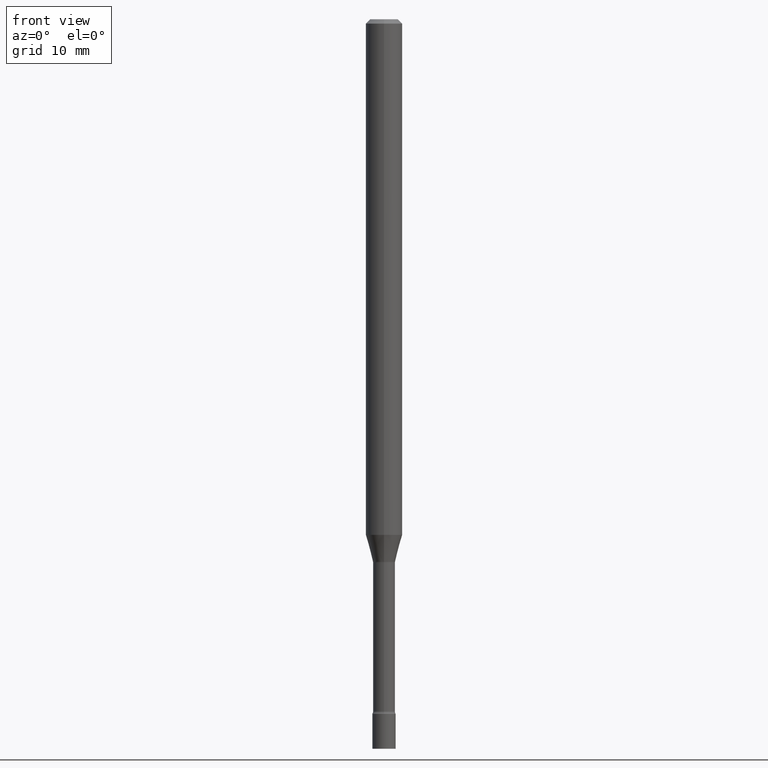
[diagram: clean part render]
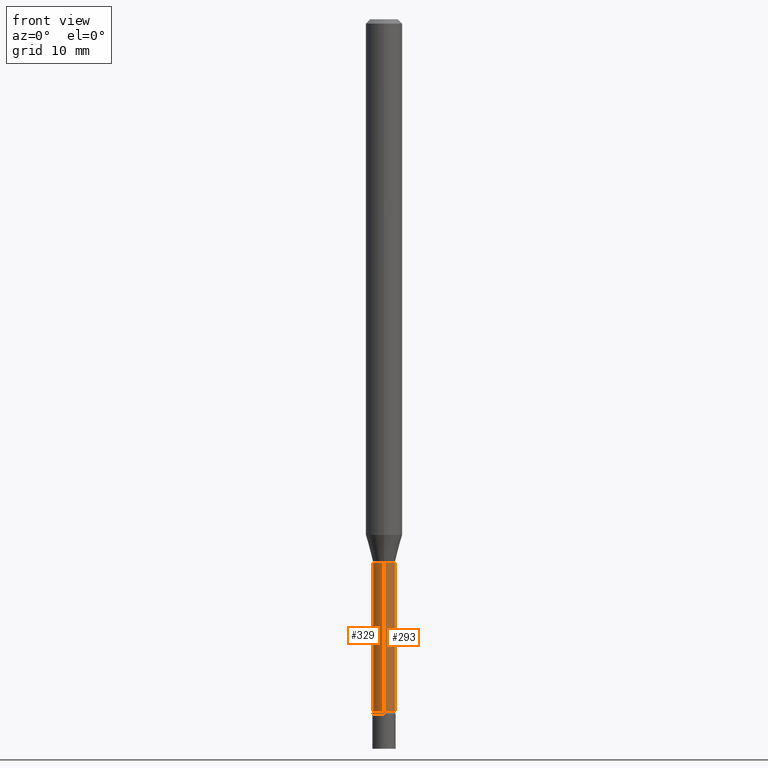
[diagram: same view with one multi-face feature highlighted, each face labeled with its STEP entity id]
A machine part, front view. The highlighted faces form ONE feature: a constant-radius fillet chain: 2 tangent blend faces with common blend radius 0.955 mm. The faces share edges in the B-rep.
Their STEP definitions:
[1] entity #329 (Cylinder):
#5 = CIRCLE ( 'NONE', #405, 0.03759999999999999454 ) ;
#8 = ORIENTED_EDGE ( 'NONE', *, *, #13, .T. ) ;
#13 = EDGE_CURVE ( 'NONE', #61, #472, #96, .T. ) ;
#41 = CARTESIAN_POINT ( 'NONE',  ( 5.800357778224581997E-29, -8.281244415803181526E-15, -2.371861204020250025 ) ) ;
#47 = AXIS2_PLACEMENT_3D ( 'NONE', #404, #335, #203 ) ;
#61 = VERTEX_POINT ( 'NONE', #353 ) ;
#64 = ORIENTED_EDGE ( 'NONE', *, *, #508, .F. ) ;
#95 = CARTESIAN_POINT ( 'NONE',  ( -2.625593966809461641E-16, -0.03760000000000835590, -2.371861204020250025 ) ) ;
#96 = CIRCLE ( 'NONE', #180, 0.03760000000000007780 ) ;
#107 = VECTOR ( 'NONE', #440, 39.37007874015748143 ) ;
#134 = CARTESIAN_POINT ( 'NONE',  ( 2.671640686457979269E-16, 0.03760000000000003617, -1.312786724224954295E-16 ) ) ;
#153 = EDGE_CURVE ( 'NONE', #297, #380, #5, .T. ) ;
#167 = CYLINDRICAL_SURFACE ( 'NONE', #47, 0.03760000000000003617 ) ;
#180 = AXIS2_PLACEMENT_3D ( 'NONE', #41, #324, #431 ) ;
#203 = DIRECTION ( 'NONE',  ( -6.982962677686267499E-15, -1.000000000000000000, 3.491454053789768672E-15 ) ) ;
#220 = CARTESIAN_POINT ( 'NONE',  ( 4.553436736946422852E-29, -6.500999419744866443E-15, -1.861974787463811065 ) ) ;
#247 = CARTESIAN_POINT ( 'NONE',  ( -2.625593966809580464E-16, -0.03760000000000649628, -1.861974787463811065 ) ) ;
#253 = LINE ( 'NONE', #134, #367 ) ;
#297 = VERTEX_POINT ( 'NONE', #517 ) ;
#324 = DIRECTION ( 'NONE',  ( -2.445487859236075809E-29, 3.491454053789768278E-15, 1.000000000000000000 ) ) ;
#328 = CARTESIAN_POINT ( 'NONE',  ( -2.625593966810038989E-16, -0.03760000000000003617, 1.312786724224954295E-16 ) ) ;
#329 = ADVANCED_FACE ( 'NONE', ( #407 ), #167, .T. ) ;
#332 = LINE ( 'NONE', #328, #107 ) ;
#335 = DIRECTION ( 'NONE',  ( -2.445487859236075809E-29, 3.491454053789768278E-15, 1.000000000000000000 ) ) ;
#353 = CARTESIAN_POINT ( 'NONE',  ( 2.756905814749771574E-16, 0.03759999999999179970, -2.371861204020250025 ) ) ;
#359 = EDGE_CURVE ( 'NONE', #472, #380, #332, .T. ) ;
#367 = VECTOR ( 'NONE', #413, 39.37007874015748143 ) ;
#380 = VERTEX_POINT ( 'NONE', #247 ) ;
#386 = ORIENTED_EDGE ( 'NONE', *, *, #153, .F. ) ;
#404 = CARTESIAN_POINT ( 'NONE',  ( 0.000000000000000000, 0.000000000000000000, 0.000000000000000000 ) ) ;
#405 = AXIS2_PLACEMENT_3D ( 'NONE', #220, #495, #462 ) ;
#407 = FACE_OUTER_BOUND ( 'NONE', #409, .T. ) ;
#409 = EDGE_LOOP ( 'NONE', ( #64, #8, #502, #386 ) ) ;
#413 = DIRECTION ( 'NONE',  ( -2.445487859236075809E-29, 3.491454053789768278E-15, 1.000000000000000000 ) ) ;
#431 = DIRECTION ( 'NONE',  ( -6.982962677686265922E-15, -1.000000000000000000, 0.000000000000000000 ) ) ;
#440 = DIRECTION ( 'NONE',  ( -2.445487859236075809E-29, 3.491454053789768278E-15, 1.000000000000000000 ) ) ;
#462 = DIRECTION ( 'NONE',  ( -6.982962677686265922E-15, -1.000000000000000000, 0.000000000000000000 ) ) ;
#472 = VERTEX_POINT ( 'NONE', #95 ) ;
#495 = DIRECTION ( 'NONE',  ( -2.445487859236075809E-29, 3.491454053789768278E-15, 1.000000000000000000 ) ) ;
#502 = ORIENTED_EDGE ( 'NONE', *, *, #359, .T. ) ;
#508 = EDGE_CURVE ( 'NONE', #61, #297, #253, .T. ) ;
#517 = CARTESIAN_POINT ( 'NONE',  ( 2.671640686458558589E-16, 0.03759999999999349279, -1.861974787463811065 ) ) ;
[2] entity #293 (Cylinder):
#12 = EDGE_LOOP ( 'NONE', ( #263, #463, #186, #416 ) ) ;
#61 = VERTEX_POINT ( 'NONE', #353 ) ;
#65 = DIRECTION ( 'NONE',  ( -6.982962677686265922E-15, -1.000000000000000000, 0.000000000000000000 ) ) ;
#90 = FACE_OUTER_BOUND ( 'NONE', #12, .T. ) ;
#93 = DIRECTION ( 'NONE',  ( -2.445487859236075809E-29, 3.491454053789768278E-15, 1.000000000000000000 ) ) ;
#95 = CARTESIAN_POINT ( 'NONE',  ( -2.625593966809461641E-16, -0.03760000000000835590, -2.371861204020250025 ) ) ;
#107 = VECTOR ( 'NONE', #440, 39.37007874015748143 ) ;
#125 = CYLINDRICAL_SURFACE ( 'NONE', #300, 0.03760000000000003617 ) ;
#132 = CARTESIAN_POINT ( 'NONE',  ( 5.800357778224581997E-29, -8.281244415803181526E-15, -2.371861204020250025 ) ) ;
#134 = CARTESIAN_POINT ( 'NONE',  ( 2.671640686457979269E-16, 0.03760000000000003617, -1.312786724224954295E-16 ) ) ;
#186 = ORIENTED_EDGE ( 'NONE', *, *, #448, .F. ) ;
#189 = CIRCLE ( 'NONE', #520, 0.03759999999999999454 ) ;
#208 = DIRECTION ( 'NONE',  ( -6.982962677686267499E-15, -1.000000000000000000, 3.491454053789768672E-15 ) ) ;
#247 = CARTESIAN_POINT ( 'NONE',  ( -2.625593966809580464E-16, -0.03760000000000649628, -1.861974787463811065 ) ) ;
#251 = CARTESIAN_POINT ( 'NONE',  ( 0.000000000000000000, 0.000000000000000000, 0.000000000000000000 ) ) ;
#253 = LINE ( 'NONE', #134, #367 ) ;
#263 = ORIENTED_EDGE ( 'NONE', *, *, #304, .T. ) ;
#293 = ADVANCED_FACE ( 'NONE', ( #90 ), #125, .T. ) ;
#297 = VERTEX_POINT ( 'NONE', #517 ) ;
#300 = AXIS2_PLACEMENT_3D ( 'NONE', #251, #93, #208 ) ;
#304 = EDGE_CURVE ( 'NONE', #472, #61, #406, .T. ) ;
#328 = CARTESIAN_POINT ( 'NONE',  ( -2.625593966810038989E-16, -0.03760000000000003617, 1.312786724224954295E-16 ) ) ;
#332 = LINE ( 'NONE', #328, #107 ) ;
#336 = AXIS2_PLACEMENT_3D ( 'NONE', #132, #443, #403 ) ;
#353 = CARTESIAN_POINT ( 'NONE',  ( 2.756905814749771574E-16, 0.03759999999999179970, -2.371861204020250025 ) ) ;
#359 = EDGE_CURVE ( 'NONE', #472, #380, #332, .T. ) ;
#367 = VECTOR ( 'NONE', #413, 39.37007874015748143 ) ;
#380 = VERTEX_POINT ( 'NONE', #247 ) ;
#403 = DIRECTION ( 'NONE',  ( -6.982962677686265922E-15, -1.000000000000000000, 0.000000000000000000 ) ) ;
#406 = CIRCLE ( 'NONE', #336, 0.03760000000000007780 ) ;
#413 = DIRECTION ( 'NONE',  ( -2.445487859236075809E-29, 3.491454053789768278E-15, 1.000000000000000000 ) ) ;
#416 = ORIENTED_EDGE ( 'NONE', *, *, #359, .F. ) ;
#440 = DIRECTION ( 'NONE',  ( -2.445487859236075809E-29, 3.491454053789768278E-15, 1.000000000000000000 ) ) ;
#443 = DIRECTION ( 'NONE',  ( -2.445487859236075809E-29, 3.491454053789768278E-15, 1.000000000000000000 ) ) ;
#448 = EDGE_CURVE ( 'NONE', #380, #297, #189, .T. ) ;
#454 = CARTESIAN_POINT ( 'NONE',  ( 4.553436736946422852E-29, -6.500999419744866443E-15, -1.861974787463811065 ) ) ;
#463 = ORIENTED_EDGE ( 'NONE', *, *, #508, .T. ) ;
#472 = VERTEX_POINT ( 'NONE', #95 ) ;
#491 = DIRECTION ( 'NONE',  ( -2.445487859236075809E-29, 3.491454053789768278E-15, 1.000000000000000000 ) ) ;
#508 = EDGE_CURVE ( 'NONE', #61, #297, #253, .T. ) ;
#517 = CARTESIAN_POINT ( 'NONE',  ( 2.671640686458558589E-16, 0.03759999999999349279, -1.861974787463811065 ) ) ;
#520 = AXIS2_PLACEMENT_3D ( 'NONE', #454, #491, #65 ) ;